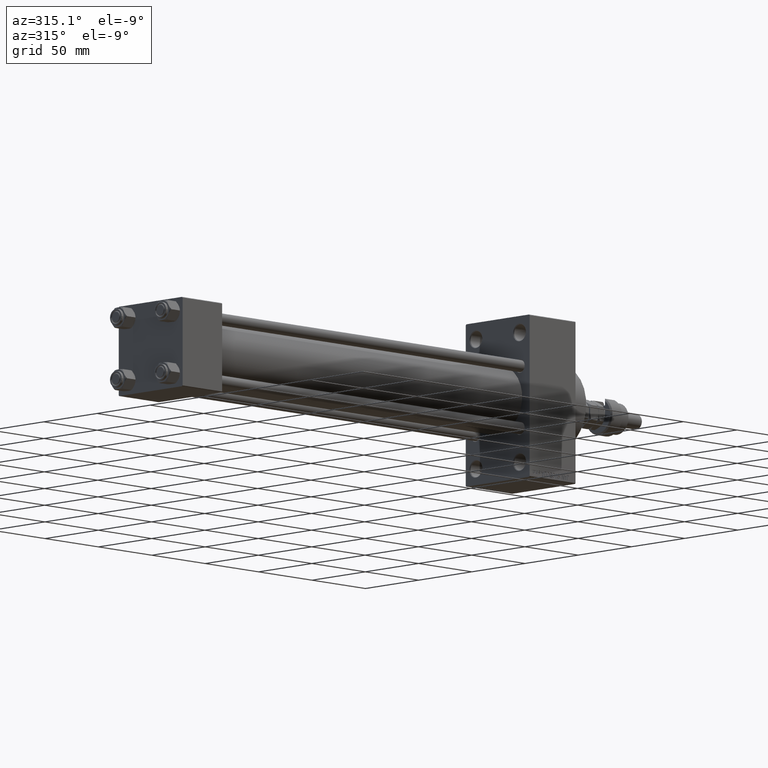
[diagram: clean part render]
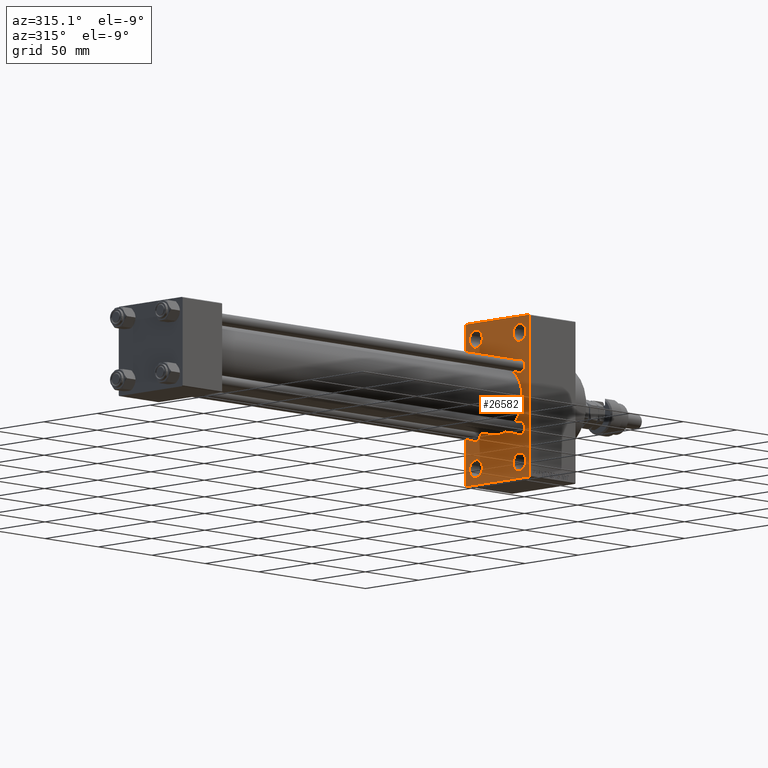
[diagram: same view with one face highlighted and labeled with its STEP entity id]
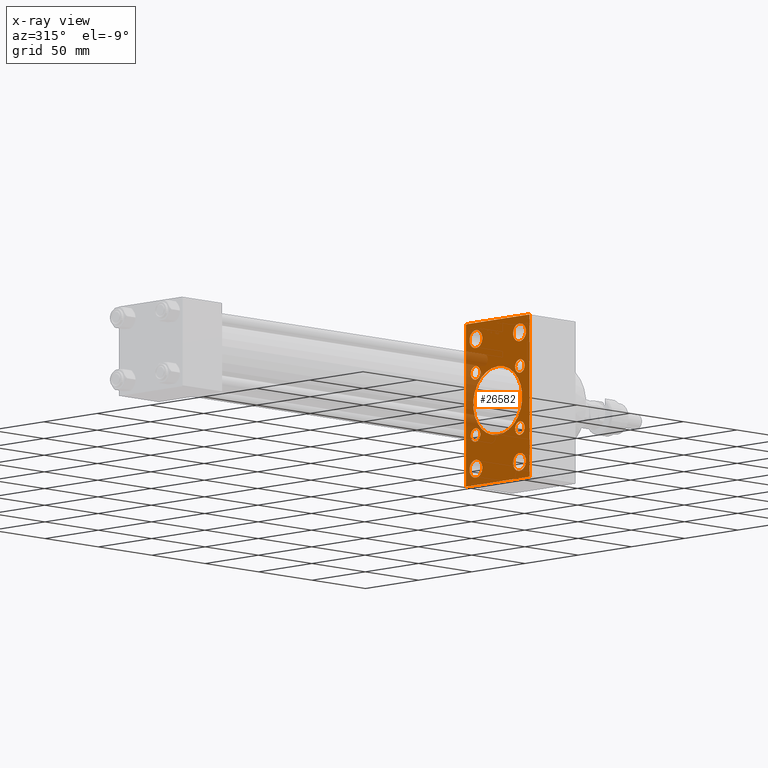
[diagram: x-ray of the same camera — body ghosted, the highlighted face saturated]
A machine part, auxiliary view. The second image highlights one B-rep face of the part: STEP entity #26582.
The next image is the same camera in x-ray: the body ghosted, the highlighted face saturated — about 13% of this face is hidden behind the body in this view.
In plain terms, the highlighted planar face has unit normal (-1, 0, 0).
Its self-contained STEP definition (entity closure, byte-faithful):
#973 = CARTESIAN_POINT ( 'NONE',  ( 324.9999999999999432, -20.50000000000000000, 43.50000000000000000 ) ) ;
#986 = AXIS2_PLACEMENT_3D ( 'NONE', #48085, #11242, #12020 ) ;
#1639 = ORIENTED_EDGE ( 'NONE', *, *, #19900, .T. ) ;
#1645 = AXIS2_PLACEMENT_3D ( 'NONE', #20655, #16694, #21699 ) ;
#2108 = AXIS2_PLACEMENT_3D ( 'NONE', #32751, #48571, #12507 ) ;
#2240 = CARTESIAN_POINT ( 'NONE',  ( 324.9999999999999432, 20.84999999999999787, 20.85000000000000142 ) ) ;
#2814 = DIRECTION ( 'NONE',  ( 0.000000000000000000, 0.000000000000000000, 1.000000000000000000 ) ) ;
#3065 = AXIS2_PLACEMENT_3D ( 'NONE', #8045, #35176, #47290 ) ;
#3085 = ORIENTED_EDGE ( 'NONE', *, *, #43678, .T. ) ;
#3347 = VECTOR ( 'NONE', #22203, 1000.000000000000000 ) ;
#3640 = VERTEX_POINT ( 'NONE', #11477 ) ;
#3764 = EDGE_LOOP ( 'NONE', ( #42087, #21883 ) ) ;
#3957 = CARTESIAN_POINT ( 'NONE',  ( 324.9999999999999432, 20.50000000000000000, 43.50000000000000000 ) ) ;
#4026 = AXIS2_PLACEMENT_3D ( 'NONE', #2240, #18055, #34120 ) ;
#4161 = DIRECTION ( 'NONE',  ( 1.000000000000000000, -0.000000000000000000, 0.000000000000000000 ) ) ;
#4415 = DIRECTION ( 'NONE',  ( 1.000000000000000000, -0.000000000000000000, 0.000000000000000000 ) ) ;
#4449 = CIRCLE ( 'NONE', #30511, 6.000000000000060396 ) ;
#4570 = CARTESIAN_POINT ( 'NONE',  ( 324.9999999999999432, 20.84999999999999787, -20.85000000000000142 ) ) ;
#4628 = ORIENTED_EDGE ( 'NONE', *, *, #45225, .F. ) ;
#4913 = VERTEX_POINT ( 'NONE', #34437 ) ;
#5104 = VERTEX_POINT ( 'NONE', #31773 ) ;
#5239 = VERTEX_POINT ( 'NONE', #38073 ) ;
#5283 = EDGE_CURVE ( 'NONE', #32852, #36569, #32583, .T. ) ;
#5322 = CIRCLE ( 'NONE', #37319, 6.000000000000060396 ) ;
#5531 = CARTESIAN_POINT ( 'NONE',  ( 324.9999999999999432, 29.50000000000004974, 54.49999999999999289 ) ) ;
#5543 = AXIS2_PLACEMENT_3D ( 'NONE', #4570, #30993, #43125 ) ;
#6247 = CARTESIAN_POINT ( 'NONE',  ( 324.9999999999999432, -20.50000000000000000, -43.50000000000000000 ) ) ;
#6346 = CARTESIAN_POINT ( 'NONE',  ( 324.9999999999999432, -20.84999999999999076, -20.85000000000000497 ) ) ;
#6815 = VECTOR ( 'NONE', #31941, 1000.000000000000000 ) ;
#6823 = PLANE ( 'NONE',  #10209 ) ;
#6967 = VERTEX_POINT ( 'NONE', #21578 ) ;
#7120 = EDGE_CURVE ( 'NONE', #41752, #3640, #10213, .T. ) ;
#7300 = EDGE_LOOP ( 'NONE', ( #20045, #30765 ) ) ;
#7458 = CARTESIAN_POINT ( 'NONE',  ( 324.9999999999999432, 41.99999999999835154, -42.00000000000301981 ) ) ;
#7461 = CARTESIAN_POINT ( 'NONE',  ( 324.9999999999999432, -2.602085213965210642E-15, 0.000000000000000000 ) ) ;
#7600 = FACE_BOUND ( 'NONE', #3764, .T. ) ;
#7757 = ORIENTED_EDGE ( 'NONE', *, *, #7120, .T. ) ;
#7861 = FACE_OUTER_BOUND ( 'NONE', #14170, .T. ) ;
#8045 = CARTESIAN_POINT ( 'NONE',  ( 324.9999999999999432, 20.50000000000000000, -43.50000000000000000 ) ) ;
#8143 = VERTEX_POINT ( 'NONE', #15214 ) ;
#8435 = EDGE_CURVE ( 'NONE', #6967, #3640, #23048, .T. ) ;
#8643 = CIRCLE ( 'NONE', #32212, 6.000000000000060396 ) ;
#8778 = CARTESIAN_POINT ( 'NONE',  ( 324.9999999999999432, -20.84999999999999076, -25.35000000000001208 ) ) ;
#8811 = CARTESIAN_POINT ( 'NONE',  ( 324.9999999999999432, 20.84999999999999787, 25.35000000000000853 ) ) ;
#8849 = AXIS2_PLACEMENT_3D ( 'NONE', #22252, #11183, #35132 ) ;
#8938 = CARTESIAN_POINT ( 'NONE',  ( 324.9999999999999432, -29.49999999999994671, 54.50000000000000000 ) ) ;
#9321 = VERTEX_POINT ( 'NONE', #30696 ) ;
#9531 = EDGE_CURVE ( 'NONE', #41510, #5104, #10049, .T. ) ;
#9803 = CIRCLE ( 'NONE', #2108, 6.000000000000060396 ) ;
#9850 = EDGE_CURVE ( 'NONE', #45375, #14900, #47740, .T. ) ;
#10049 = CIRCLE ( 'NONE', #1645, 23.00000000000000000 ) ;
#10076 = AXIS2_PLACEMENT_3D ( 'NONE', #11534, #43651, #50780 ) ;
#10209 = AXIS2_PLACEMENT_3D ( 'NONE', #43949, #19966, #30780 ) ;
#10213 = LINE ( 'NONE', #50500, #24302 ) ;
#10268 = EDGE_CURVE ( 'NONE', #19474, #45375, #47199, .T. ) ;
#10704 = CARTESIAN_POINT ( 'NONE',  ( 324.9999999999999432, -20.50000000000000000, 37.49999999999993605 ) ) ;
#10933 = VERTEX_POINT ( 'NONE', #8938 ) ;
#11183 = DIRECTION ( 'NONE',  ( 1.000000000000000000, -0.000000000000000000, 0.000000000000000000 ) ) ;
#11242 = DIRECTION ( 'NONE',  ( 1.000000000000000000, -0.000000000000000000, 0.000000000000000000 ) ) ;
#11477 = CARTESIAN_POINT ( 'NONE',  ( 324.9999999999999432, -30.00000000000000000, -53.99999999999998579 ) ) ;
#11534 = CARTESIAN_POINT ( 'NONE',  ( 324.9999999999999432, 20.50000000000000000, -43.50000000000000000 ) ) ;
#11820 = FACE_BOUND ( 'NONE', #14744, .T. ) ;
#11826 = AXIS2_PLACEMENT_3D ( 'NONE', #973, #33105, #17558 ) ;
#11866 = DIRECTION ( 'NONE',  ( 1.000000000000000000, -0.000000000000000000, 0.000000000000000000 ) ) ;
#11913 = CIRCLE ( 'NONE', #43074, 4.500000000000007105 ) ;
#11945 = DIRECTION ( 'NONE',  ( 0.000000000000000000, 0.000000000000000000, -1.000000000000000000 ) ) ;
#12020 = DIRECTION ( 'NONE',  ( 0.000000000000000000, 0.000000000000000000, 1.000000000000000000 ) ) ;
#12061 = ORIENTED_EDGE ( 'NONE', *, *, #9531, .T. ) ;
#12255 = ORIENTED_EDGE ( 'NONE', *, *, #9850, .T. ) ;
#12507 = DIRECTION ( 'NONE',  ( 0.000000000000000000, 0.000000000000000000, 1.000000000000000000 ) ) ;
#12743 = ORIENTED_EDGE ( 'NONE', *, *, #26649, .T. ) ;
#13135 = EDGE_LOOP ( 'NONE', ( #32544, #21742 ) ) ;
#14170 = EDGE_LOOP ( 'NONE', ( #24591, #7757, #44488, #1639, #4628, #43766, #24341, #12255 ) ) ;
#14399 = CIRCLE ( 'NONE', #30348, 23.00000000000000000 ) ;
#14734 = FACE_BOUND ( 'NONE', #47378, .T. ) ;
#14742 = ORIENTED_EDGE ( 'NONE', *, *, #25236, .T. ) ;
#14744 = EDGE_LOOP ( 'NONE', ( #15338, #46828 ) ) ;
#14900 = VERTEX_POINT ( 'NONE', #16498 ) ;
#14941 = DIRECTION ( 'NONE',  ( 0.000000000000000000, -0.7071067811865352493, 0.7071067811865597852 ) ) ;
#15214 = CARTESIAN_POINT ( 'NONE',  ( 324.9999999999999432, 20.84999999999999787, -16.34999999999999432 ) ) ;
#15338 = ORIENTED_EDGE ( 'NONE', *, *, #21456, .T. ) ;
#15476 = CARTESIAN_POINT ( 'NONE',  ( 324.9999999999999432, -20.50000000000000000, -49.50000000000005684 ) ) ;
#15765 = FACE_BOUND ( 'NONE', #35859, .T. ) ;
#15834 = VERTEX_POINT ( 'NONE', #8778 ) ;
#16069 = DIRECTION ( 'NONE',  ( 1.000000000000000000, -0.000000000000000000, 0.000000000000000000 ) ) ;
#16399 = LINE ( 'NONE', #23538, #6815 ) ;
#16498 = CARTESIAN_POINT ( 'NONE',  ( 324.9999999999999432, 29.49999999999999645, -54.49999999999999289 ) ) ;
#16694 = DIRECTION ( 'NONE',  ( 1.000000000000000000, 0.000000000000000000, 0.000000000000000000 ) ) ;
#16763 = DIRECTION ( 'NONE',  ( 0.000000000000000000, 0.000000000000000000, 1.000000000000000000 ) ) ;
#17216 = EDGE_LOOP ( 'NONE', ( #48926, #39440 ) ) ;
#17240 = DIRECTION ( 'NONE',  ( 1.000000000000000000, -0.000000000000000000, 0.000000000000000000 ) ) ;
#17558 = DIRECTION ( 'NONE',  ( 0.000000000000000000, 0.000000000000000000, 1.000000000000000000 ) ) ;
#17577 = VECTOR ( 'NONE', #50195, 1000.000000000000000 ) ;
#17688 = CARTESIAN_POINT ( 'NONE',  ( 324.9999999999999432, 29.99999999999999645, -54.49999999999999289 ) ) ;
#18001 = VERTEX_POINT ( 'NONE', #31418 ) ;
#18055 = DIRECTION ( 'NONE',  ( 1.000000000000000000, -0.000000000000000000, 0.000000000000000000 ) ) ;
#18106 = VERTEX_POINT ( 'NONE', #21905 ) ;
#18380 = DIRECTION ( 'NONE',  ( -0.000000000000000000, 0.7071067811865058284, 0.7071067811865892061 ) ) ;
#18437 = CARTESIAN_POINT ( 'NONE',  ( 324.9999999999999432, 29.99999999999999645, 54.49999999999999289 ) ) ;
#19474 = VERTEX_POINT ( 'NONE', #39110 ) ;
#19900 = EDGE_CURVE ( 'NONE', #6967, #10933, #23252, .T. ) ;
#19966 = DIRECTION ( 'NONE',  ( -1.000000000000000000, 0.000000000000000000, -0.000000000000000000 ) ) ;
#20045 = ORIENTED_EDGE ( 'NONE', *, *, #29237, .T. ) ;
#20530 = DIRECTION ( 'NONE',  ( 0.000000000000000000, 0.000000000000000000, 1.000000000000000000 ) ) ;
#20627 = VERTEX_POINT ( 'NONE', #26178 ) ;
#20655 = CARTESIAN_POINT ( 'NONE',  ( 324.9999999999999432, -2.602085213965210642E-15, 0.000000000000000000 ) ) ;
#21040 = CARTESIAN_POINT ( 'NONE',  ( 324.9999999999999432, -20.84999999999999076, 25.35000000000001208 ) ) ;
#21051 = CARTESIAN_POINT ( 'NONE',  ( 324.9999999999999432, -20.84999999999999076, 20.85000000000000497 ) ) ;
#21151 = VERTEX_POINT ( 'NONE', #10704 ) ;
#21456 = EDGE_CURVE ( 'NONE', #5239, #15834, #40443, .T. ) ;
#21578 = CARTESIAN_POINT ( 'NONE',  ( 324.9999999999999432, -30.00000000000000000, 53.99999999999988631 ) ) ;
#21699 = DIRECTION ( 'NONE',  ( 0.000000000000000000, 0.000000000000000000, -1.000000000000000000 ) ) ;
#21742 = ORIENTED_EDGE ( 'NONE', *, *, #52124, .T. ) ;
#21883 = ORIENTED_EDGE ( 'NONE', *, *, #29880, .T. ) ;
#21905 = CARTESIAN_POINT ( 'NONE',  ( 324.9999999999999432, 20.50000000000000000, 37.49999999999993605 ) ) ;
#22202 = VERTEX_POINT ( 'NONE', #5531 ) ;
#22203 = DIRECTION ( 'NONE',  ( 0.000000000000000000, 0.000000000000000000, -1.000000000000000000 ) ) ;
#22252 = CARTESIAN_POINT ( 'NONE',  ( 324.9999999999999432, 20.84999999999999787, 20.85000000000000142 ) ) ;
#22314 = ORIENTED_EDGE ( 'NONE', *, *, #35126, .T. ) ;
#22620 = EDGE_CURVE ( 'NONE', #21151, #42412, #34656, .T. ) ;
#22754 = CIRCLE ( 'NONE', #11826, 6.000000000000060396 ) ;
#22824 = CARTESIAN_POINT ( 'NONE',  ( 324.9999999999999432, 20.50000000000000000, -37.49999999999993605 ) ) ;
#23048 = LINE ( 'NONE', #34900, #17577 ) ;
#23252 = LINE ( 'NONE', #39314, #37061 ) ;
#23264 = EDGE_LOOP ( 'NONE', ( #3085, #24968 ) ) ;
#23271 = DIRECTION ( 'NONE',  ( 1.000000000000000000, 0.000000000000000000, 0.000000000000000000 ) ) ;
#23538 = CARTESIAN_POINT ( 'NONE',  ( 324.9999999999999432, 42.00000000000166267, 41.99999999999699440 ) ) ;
#23669 = FACE_BOUND ( 'NONE', #17216, .T. ) ;
#23708 = DIRECTION ( 'NONE',  ( 0.000000000000000000, 0.000000000000000000, 1.000000000000000000 ) ) ;
#24302 = VECTOR ( 'NONE', #14941, 1000.000000000000000 ) ;
#24341 = ORIENTED_EDGE ( 'NONE', *, *, #10268, .T. ) ;
#24591 = ORIENTED_EDGE ( 'NONE', *, *, #42149, .T. ) ;
#24968 = ORIENTED_EDGE ( 'NONE', *, *, #22620, .T. ) ;
#25202 = VECTOR ( 'NONE', #44328, 1000.000000000000000 ) ;
#25236 = EDGE_CURVE ( 'NONE', #5104, #41510, #14399, .T. ) ;
#26178 = CARTESIAN_POINT ( 'NONE',  ( 324.9999999999999432, 20.50000000000000000, -49.50000000000005684 ) ) ;
#26372 = DIRECTION ( 'NONE',  ( 0.000000000000000000, 0.000000000000000000, 1.000000000000000000 ) ) ;
#26582 = ADVANCED_FACE ( 'NONE', ( #43681, #7600, #23669, #42905, #35778, #15765, #47880, #11820, #14734, #7861 ), #6823, .T. ) ;
#26649 = EDGE_CURVE ( 'NONE', #9321, #8143, #11913, .T. ) ;
#26872 = VERTEX_POINT ( 'NONE', #22824 ) ;
#27209 = AXIS2_PLACEMENT_3D ( 'NONE', #33565, #17240, #49378 ) ;
#28365 = VECTOR ( 'NONE', #34017, 1000.000000000000000 ) ;
#29237 = EDGE_CURVE ( 'NONE', #51763, #18106, #4449, .T. ) ;
#29414 = CARTESIAN_POINT ( 'NONE',  ( 324.9999999999999432, -20.84999999999999076, -20.85000000000000497 ) ) ;
#29439 = VERTEX_POINT ( 'NONE', #21040 ) ;
#29751 = CARTESIAN_POINT ( 'NONE',  ( 324.9999999999999432, 20.84999999999999787, 16.34999999999999432 ) ) ;
#29780 = DIRECTION ( 'NONE',  ( 0.000000000000000000, -1.000000000000000000, 1.156482317317871478E-16 ) ) ;
#29880 = EDGE_CURVE ( 'NONE', #31971, #4913, #5322, .T. ) ;
#30068 = EDGE_CURVE ( 'NONE', #29439, #18001, #34750, .T. ) ;
#30348 = AXIS2_PLACEMENT_3D ( 'NONE', #7461, #23271, #11945 ) ;
#30511 = AXIS2_PLACEMENT_3D ( 'NONE', #36073, #11866, #23708 ) ;
#30696 = CARTESIAN_POINT ( 'NONE',  ( 324.9999999999999432, 20.84999999999999787, -25.35000000000000853 ) ) ;
#30765 = ORIENTED_EDGE ( 'NONE', *, *, #52060, .T. ) ;
#30766 = CIRCLE ( 'NONE', #5543, 4.500000000000007105 ) ;
#30780 = DIRECTION ( 'NONE',  ( -0.000000000000000000, 0.000000000000000000, 1.000000000000000000 ) ) ;
#30993 = DIRECTION ( 'NONE',  ( 1.000000000000000000, -0.000000000000000000, 0.000000000000000000 ) ) ;
#31077 = DIRECTION ( 'NONE',  ( 1.000000000000000000, -0.000000000000000000, 0.000000000000000000 ) ) ;
#31418 = CARTESIAN_POINT ( 'NONE',  ( 324.9999999999999432, -20.84999999999999076, 16.34999999999999787 ) ) ;
#31773 = CARTESIAN_POINT ( 'NONE',  ( 324.9999999999999432, -2.602085213965210642E-15, 23.00000000000000000 ) ) ;
#31941 = DIRECTION ( 'NONE',  ( 0.000000000000000000, 0.7071067811865081598, -0.7071067811865868746 ) ) ;
#31971 = VERTEX_POINT ( 'NONE', #15476 ) ;
#32212 = AXIS2_PLACEMENT_3D ( 'NONE', #3957, #16069, #20530 ) ;
#32383 = DIRECTION ( 'NONE',  ( 0.000000000000000000, 0.000000000000000000, 1.000000000000000000 ) ) ;
#32465 = ORIENTED_EDGE ( 'NONE', *, *, #5283, .T. ) ;
#32544 = ORIENTED_EDGE ( 'NONE', *, *, #30068, .T. ) ;
#32583 = CIRCLE ( 'NONE', #4026, 4.500000000000007105 ) ;
#32751 = CARTESIAN_POINT ( 'NONE',  ( 324.9999999999999432, -20.50000000000000000, -43.50000000000000000 ) ) ;
#32852 = VERTEX_POINT ( 'NONE', #29751 ) ;
#33105 = DIRECTION ( 'NONE',  ( 1.000000000000000000, -0.000000000000000000, 0.000000000000000000 ) ) ;
#33232 = CIRCLE ( 'NONE', #3065, 6.000000000000060396 ) ;
#33284 = CARTESIAN_POINT ( 'NONE',  ( 324.9999999999999432, -29.50000000000000355, -54.50000000000000000 ) ) ;
#33565 = CARTESIAN_POINT ( 'NONE',  ( 324.9999999999999432, -20.84999999999999076, 20.85000000000000497 ) ) ;
#34017 = DIRECTION ( 'NONE',  ( 0.000000000000000000, -1.000000000000000000, -1.156482317317871478E-16 ) ) ;
#34120 = DIRECTION ( 'NONE',  ( 0.000000000000000000, 0.000000000000000000, 1.000000000000000000 ) ) ;
#34163 = DIRECTION ( 'NONE',  ( 1.000000000000000000, -0.000000000000000000, 0.000000000000000000 ) ) ;
#34303 = EDGE_CURVE ( 'NONE', #36569, #32852, #50932, .T. ) ;
#34437 = CARTESIAN_POINT ( 'NONE',  ( 324.9999999999999432, -20.50000000000000000, -37.49999999999993605 ) ) ;
#34656 = CIRCLE ( 'NONE', #986, 6.000000000000060396 ) ;
#34750 = CIRCLE ( 'NONE', #27209, 4.500000000000007105 ) ;
#34900 = CARTESIAN_POINT ( 'NONE',  ( 324.9999999999999432, -30.00000000000000000, 54.50000000000000000 ) ) ;
#35126 = EDGE_CURVE ( 'NONE', #8143, #9321, #30766, .T. ) ;
#35132 = DIRECTION ( 'NONE',  ( 0.000000000000000000, 0.000000000000000000, 1.000000000000000000 ) ) ;
#35176 = DIRECTION ( 'NONE',  ( 1.000000000000000000, -0.000000000000000000, 0.000000000000000000 ) ) ;
#35778 = FACE_BOUND ( 'NONE', #13135, .T. ) ;
#35859 = EDGE_LOOP ( 'NONE', ( #41514, #32465 ) ) ;
#36073 = CARTESIAN_POINT ( 'NONE',  ( 324.9999999999999432, 20.50000000000000000, 43.50000000000000000 ) ) ;
#36081 = DIRECTION ( 'NONE',  ( 1.000000000000000000, -0.000000000000000000, 0.000000000000000000 ) ) ;
#36290 = DIRECTION ( 'NONE',  ( 0.000000000000000000, 0.000000000000000000, 1.000000000000000000 ) ) ;
#36569 = VERTEX_POINT ( 'NONE', #8811 ) ;
#36608 = EDGE_CURVE ( 'NONE', #4913, #31971, #9803, .T. ) ;
#36803 = CARTESIAN_POINT ( 'NONE',  ( 324.9999999999999432, 20.84999999999999787, -20.85000000000000142 ) ) ;
#37061 = VECTOR ( 'NONE', #18380, 1000.000000000000000 ) ;
#37319 = AXIS2_PLACEMENT_3D ( 'NONE', #6247, #34163, #2814 ) ;
#37391 = EDGE_CURVE ( 'NONE', #20627, #26872, #33232, .T. ) ;
#37706 = LINE ( 'NONE', #17688, #28365 ) ;
#38073 = CARTESIAN_POINT ( 'NONE',  ( 324.9999999999999432, -20.84999999999999076, -16.34999999999999787 ) ) ;
#38696 = AXIS2_PLACEMENT_3D ( 'NONE', #6346, #31077, #26372 ) ;
#39110 = CARTESIAN_POINT ( 'NONE',  ( 324.9999999999999432, 29.99999999999999645, 53.99999999999999289 ) ) ;
#39314 = CARTESIAN_POINT ( 'NONE',  ( 324.9999999999999432, -42.00000000000171951, 41.99999999999676703 ) ) ;
#39440 = ORIENTED_EDGE ( 'NONE', *, *, #37391, .T. ) ;
#39555 = CIRCLE ( 'NONE', #38696, 4.500000000000007105 ) ;
#39783 = AXIS2_PLACEMENT_3D ( 'NONE', #21051, #36081, #32383 ) ;
#40443 = CIRCLE ( 'NONE', #43836, 4.500000000000007105 ) ;
#40790 = CARTESIAN_POINT ( 'NONE',  ( 324.9999999999999432, 29.99999999999999645, -54.00000000000004974 ) ) ;
#41510 = VERTEX_POINT ( 'NONE', #45279 ) ;
#41514 = ORIENTED_EDGE ( 'NONE', *, *, #34303, .T. ) ;
#41752 = VERTEX_POINT ( 'NONE', #33284 ) ;
#42087 = ORIENTED_EDGE ( 'NONE', *, *, #36608, .T. ) ;
#42149 = EDGE_CURVE ( 'NONE', #14900, #41752, #37706, .T. ) ;
#42412 = VERTEX_POINT ( 'NONE', #50028 ) ;
#42905 = FACE_BOUND ( 'NONE', #7300, .T. ) ;
#43074 = AXIS2_PLACEMENT_3D ( 'NONE', #36803, #4161, #36290 ) ;
#43125 = DIRECTION ( 'NONE',  ( 0.000000000000000000, 0.000000000000000000, 1.000000000000000000 ) ) ;
#43651 = DIRECTION ( 'NONE',  ( 1.000000000000000000, -0.000000000000000000, 0.000000000000000000 ) ) ;
#43678 = EDGE_CURVE ( 'NONE', #42412, #21151, #22754, .T. ) ;
#43681 = FACE_BOUND ( 'NONE', #23264, .T. ) ;
#43766 = ORIENTED_EDGE ( 'NONE', *, *, #48541, .T. ) ;
#43836 = AXIS2_PLACEMENT_3D ( 'NONE', #29414, #4415, #16763 ) ;
#43949 = CARTESIAN_POINT ( 'NONE',  ( 324.9999999999999432, 0.000000000000000000, 0.000000000000000000 ) ) ;
#44328 = DIRECTION ( 'NONE',  ( -0.000000000000000000, -0.7071067811865868746, -0.7071067811865081598 ) ) ;
#44481 = EDGE_LOOP ( 'NONE', ( #22314, #12743 ) ) ;
#44488 = ORIENTED_EDGE ( 'NONE', *, *, #8435, .F. ) ;
#45225 = EDGE_CURVE ( 'NONE', #22202, #10933, #50321, .T. ) ;
#45279 = CARTESIAN_POINT ( 'NONE',  ( 324.9999999999999432, 2.146024240737016609E-16, -23.00000000000000000 ) ) ;
#45375 = VERTEX_POINT ( 'NONE', #40790 ) ;
#45610 = EDGE_CURVE ( 'NONE', #26872, #20627, #51289, .T. ) ;
#46167 = CARTESIAN_POINT ( 'NONE',  ( 324.9999999999999432, 29.99999999999999645, 54.49999999999999289 ) ) ;
#46249 = CARTESIAN_POINT ( 'NONE',  ( 324.9999999999999432, 20.50000000000000000, 49.50000000000005684 ) ) ;
#46488 = EDGE_CURVE ( 'NONE', #15834, #5239, #39555, .T. ) ;
#46828 = ORIENTED_EDGE ( 'NONE', *, *, #46488, .T. ) ;
#47199 = LINE ( 'NONE', #46167, #3347 ) ;
#47290 = DIRECTION ( 'NONE',  ( 0.000000000000000000, 0.000000000000000000, 1.000000000000000000 ) ) ;
#47329 = CIRCLE ( 'NONE', #39783, 4.500000000000007105 ) ;
#47378 = EDGE_LOOP ( 'NONE', ( #14742, #12061 ) ) ;
#47740 = LINE ( 'NONE', #7458, #25202 ) ;
#47880 = FACE_BOUND ( 'NONE', #44481, .T. ) ;
#48085 = CARTESIAN_POINT ( 'NONE',  ( 324.9999999999999432, -20.50000000000000000, 43.50000000000000000 ) ) ;
#48541 = EDGE_CURVE ( 'NONE', #22202, #19474, #16399, .T. ) ;
#48571 = DIRECTION ( 'NONE',  ( 1.000000000000000000, -0.000000000000000000, 0.000000000000000000 ) ) ;
#48926 = ORIENTED_EDGE ( 'NONE', *, *, #45610, .T. ) ;
#49378 = DIRECTION ( 'NONE',  ( 0.000000000000000000, 0.000000000000000000, 1.000000000000000000 ) ) ;
#50028 = CARTESIAN_POINT ( 'NONE',  ( 324.9999999999999432, -20.50000000000000000, 49.50000000000005684 ) ) ;
#50195 = DIRECTION ( 'NONE',  ( 0.000000000000000000, 0.000000000000000000, -1.000000000000000000 ) ) ;
#50321 = LINE ( 'NONE', #18437, #50461 ) ;
#50461 = VECTOR ( 'NONE', #29780, 1000.000000000000000 ) ;
#50500 = CARTESIAN_POINT ( 'NONE',  ( 324.9999999999999432, -42.00000000000051159, -41.99999999999905498 ) ) ;
#50780 = DIRECTION ( 'NONE',  ( 0.000000000000000000, 0.000000000000000000, 1.000000000000000000 ) ) ;
#50932 = CIRCLE ( 'NONE', #8849, 4.500000000000007105 ) ;
#51289 = CIRCLE ( 'NONE', #10076, 6.000000000000060396 ) ;
#51763 = VERTEX_POINT ( 'NONE', #46249 ) ;
#52060 = EDGE_CURVE ( 'NONE', #18106, #51763, #8643, .T. ) ;
#52124 = EDGE_CURVE ( 'NONE', #18001, #29439, #47329, .T. ) ;